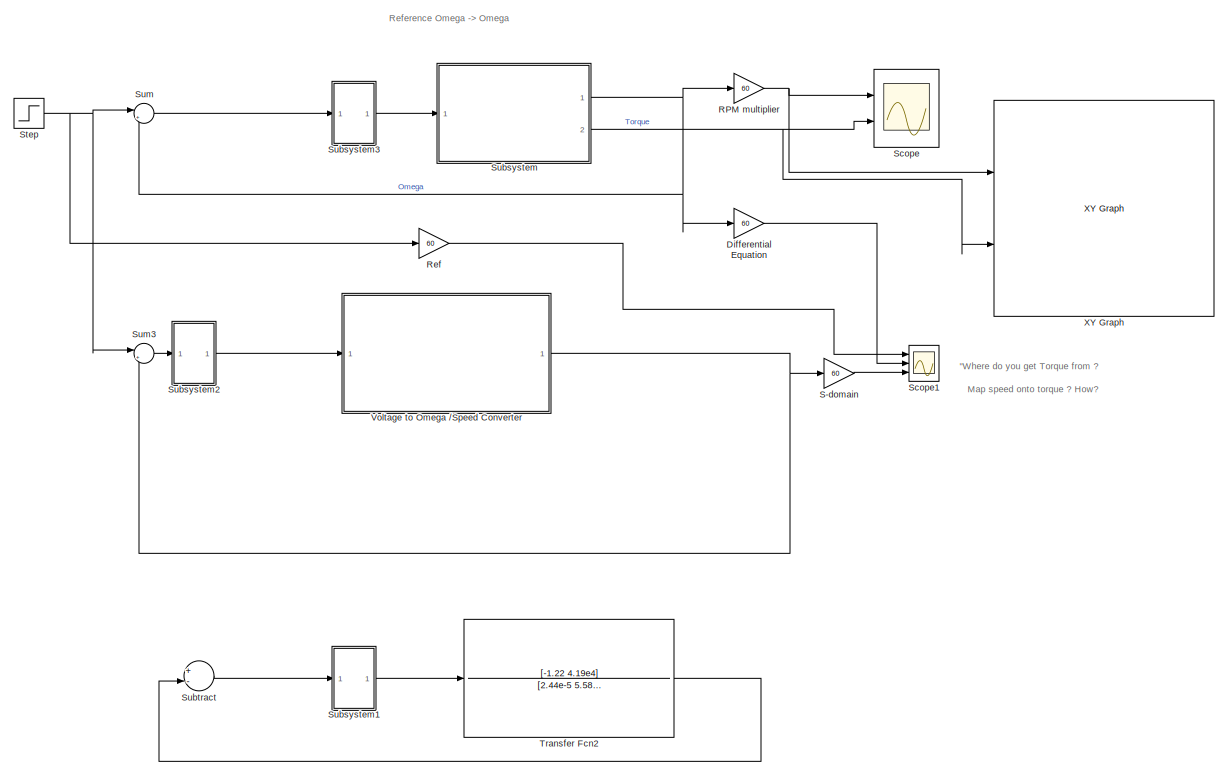
[diagram: root canvas - part 1/2, left side, full height]
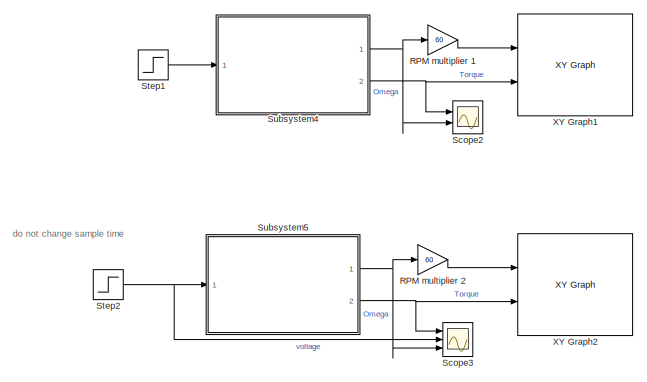
[diagram: root canvas - part 2/2, middle right region]
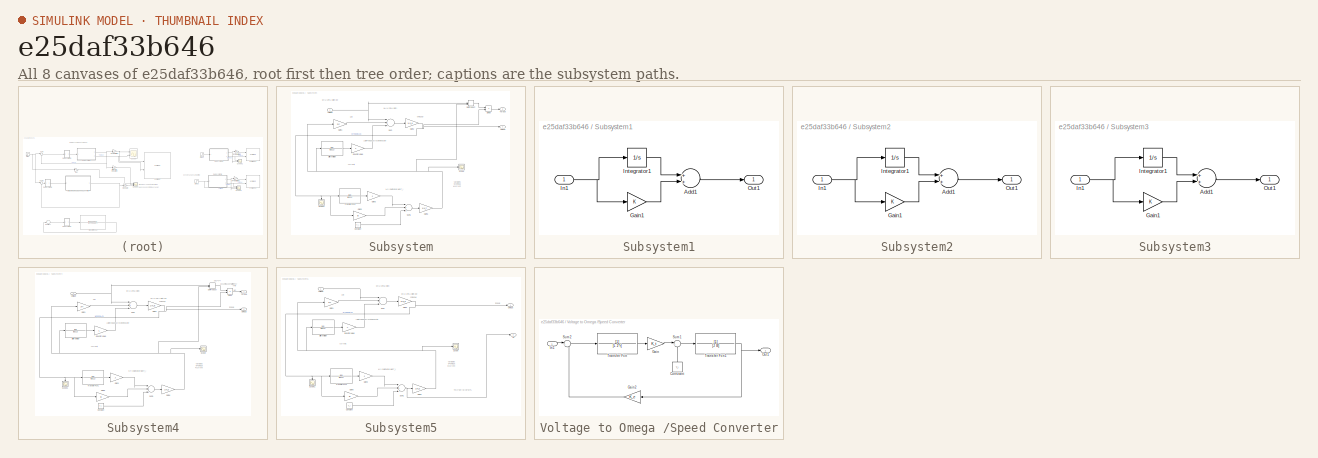
[diagram: thumbnail index - all 8 canvases of the model, root first then tree order]
MODEL slx_e25daf33b646
KIND model
CONFIG AbsTol = auto
CONFIG EnableMultiTasking = off
CONFIG FixedStep = auto
CONFIG MaxStep = auto
CONFIG MinStep = auto
CONFIG RelTol = 1e-3
CONFIG SampleTimeConstraint = Unconstrained
CONFIG Solver = ode45
CONFIG SolverName = ode45
CONFIG StartTime = 0.0
CONFIG StopTime = 0.252
BLOCK [Gain] Differential Equation 
  Gain = 60
  OutDataTypeStr = Inherit: Inherit via internal rule
  ParamDataTypeStr = Inherit: Inherit via internal rule
  SaturateOnIntegerOverflow = off
BLOCK [Gain] RPM multiplier 
  Gain = 60
  OutDataTypeStr = Inherit: Inherit via internal rule
  ParamDataTypeStr = Inherit: Inherit via internal rule
  SaturateOnIntegerOverflow = off
BLOCK [Gain] RPM multiplier 1
  Commented = on
  Gain = 60
  OutDataTypeStr = Inherit: Inherit via internal rule
  ParamDataTypeStr = Inherit: Inherit via internal rule
  SaturateOnIntegerOverflow = off
BLOCK [Gain] RPM multiplier 2
  Gain = 60
  OutDataTypeStr = Inherit: Inherit via internal rule
  ParamDataTypeStr = Inherit: Inherit via internal rule
  SaturateOnIntegerOverflow = off
BLOCK [Gain] Ref 
  Gain = 60
  OutDataTypeStr = Inherit: Inherit via internal rule
  ParamDataTypeStr = Inherit: Inherit via internal rule
  SaturateOnIntegerOverflow = off
BLOCK [Gain] S-domain 
  Gain = 60
  OutDataTypeStr = Inherit: Inherit via internal rule
  ParamDataTypeStr = Inherit: Inherit via internal rule
  SaturateOnIntegerOverflow = off
BLOCK [Scope] Scope
  Floating = off
  NumInputPorts = 2
  Ports = [2]
  ScopeSpecificationString = Simulink.scopes.TimeScopeBlockCfg('CurrentConfiguration', extmgr.ConfigurationSet(extmgr.Configuration('Core','General UI',true),extmgr.Configuration('Core','Source UI',true),extmgr.Configuration('Sources','WiredSimulink',true,'DataLoggingVariableName','ScopeData3'),extmgr.Configuration('Visuals','Time Domain',true,'SerializedDisplays',{struct('MinYLimReal','-1003.84131','MaxYLimReal','1223.81622'...<+1403ch>
BLOCK [Scope] Scope1
  Floating = off
  NumInputPorts = 3
  Ports = [3]
  ScopeSpecificationString = Simulink.scopes.TimeScopeBlockCfg('CurrentConfiguration', extmgr.ConfigurationSet(extmgr.Configuration('Core','General UI',true),extmgr.Configuration('Core','Source UI',true),extmgr.Configuration('Sources','WiredSimulink',true,'DataLoggingVariableName','ScopeData1'),extmgr.Configuration('Visuals','Time Domain',true,'SerializedDisplays',{struct('MinYLimReal','-3035.68826','MaxYLimReal','2044.11074'...<+1780ch>
BLOCK [Scope] Scope2
  Commented = on
  Floating = off
  NumInputPorts = 2
  Ports = [2]
  ScopeSpecificationString = Simulink.scopes.TimeScopeBlockCfg('CurrentConfiguration', extmgr.ConfigurationSet(extmgr.Configuration('Core','General UI',true),extmgr.Configuration('Core','Source UI',true),extmgr.Configuration('Sources','WiredSimulink',true,'DataLoggingVariableName','ScopeData4'),extmgr.Configuration('Visuals','Time Domain',true,'SerializedDisplays',{struct('MinYLimReal','-356.25688','MaxYLimReal','39.5841','YL...<+1409ch>
BLOCK [Scope] Scope3
  Floating = off
  NumInputPorts = 3
  Ports = [3]
  ScopeSpecificationString = Simulink.scopes.TimeScopeBlockCfg('CurrentConfiguration', extmgr.ConfigurationSet(extmgr.Configuration('Core','General UI',true),extmgr.Configuration('Core','Source UI',true),extmgr.Configuration('Sources','WiredSimulink',true,'DataLoggingVariableName','ScopeData5'),extmgr.Configuration('Visuals','Time Domain',true,'SerializedDisplays',{struct('MinYLimReal','-337.96903','MaxYLimReal','722.07009','...<+1801ch>
BLOCK [Step] Step
  After = 25
  SampleTime = 0
  Time = 0.01
BLOCK [Step] Step1
  After = 120
  Commented = on
  SampleTime = 0
BLOCK [Step] Step2
  After = 30
  SampleTime = 0
  Time = 0.001
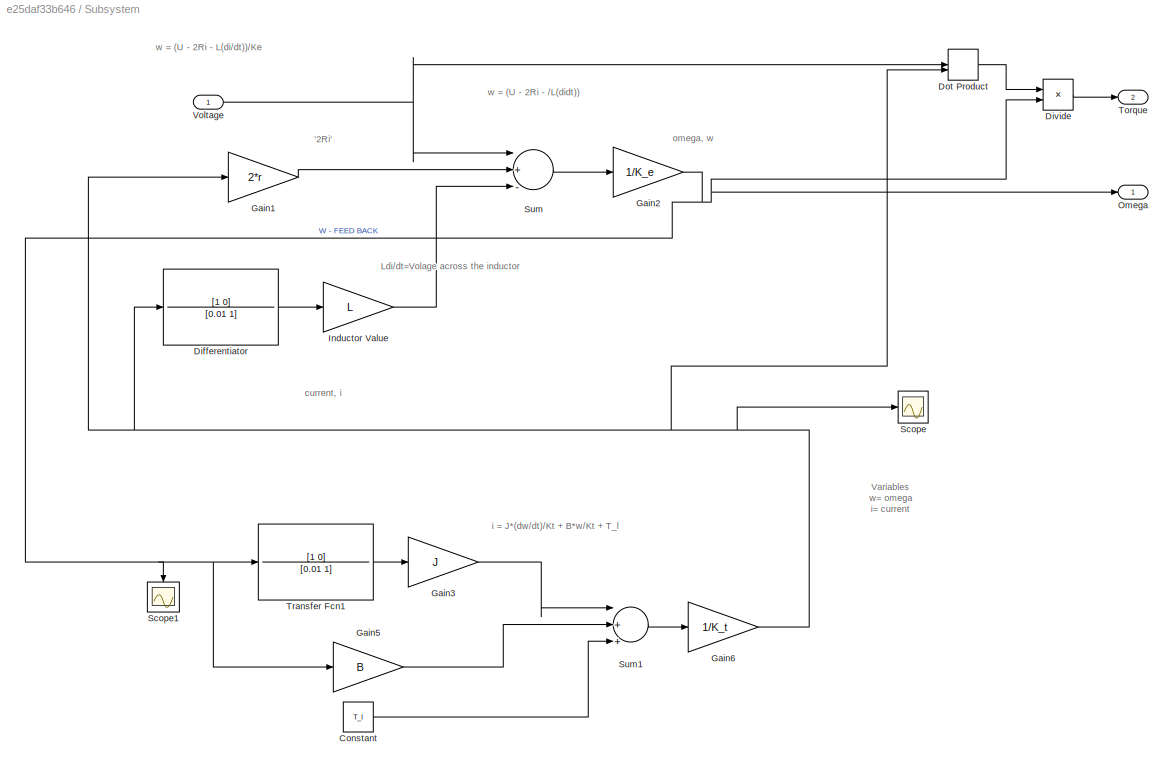
BLOCK [SubSystem] Subsystem
  Ports = [1, 2]
  RequestExecContextInheritance = off
BLOCK [Constant] Subsystem/Constant
  Value = T_l
BLOCK [TransferFcn] Subsystem/Differentiator 
  Denominator = [0.01 1]
  Numerator = [1 0]
BLOCK [Product] Subsystem/Divide
  InputSameDT = off
  Inputs = */
  OutDataTypeStr = Inherit: Inherit via internal rule
  Ports = [2, 1]
  RndMeth = Floor
  SaturateOnIntegerOverflow = off
BLOCK [DotProduct] Subsystem/Dot Product
  OutDataTypeStr = Inherit: Inherit via internal rule
BLOCK [Gain] Subsystem/Gain1
  Gain = 2*r
  OutDataTypeStr = Inherit: Inherit via internal rule
  ParamDataTypeStr = Inherit: Inherit via internal rule
  SaturateOnIntegerOverflow = off
BLOCK [Gain] Subsystem/Gain2
  Gain = 1/K_e
  OutDataTypeStr = Inherit: Inherit via internal rule
  ParamDataTypeStr = Inherit: Inherit via internal rule
  SaturateOnIntegerOverflow = off
BLOCK [Gain] Subsystem/Gain3
  Gain = J
  OutDataTypeStr = Inherit: Inherit via internal rule
  ParamDataTypeStr = Inherit: Inherit via internal rule
  SaturateOnIntegerOverflow = off
BLOCK [Gain] Subsystem/Gain5
  Gain = B
  OutDataTypeStr = Inherit: Inherit via internal rule
  ParamDataTypeStr = Inherit: Inherit via internal rule
  SaturateOnIntegerOverflow = off
BLOCK [Gain] Subsystem/Gain6
  Gain = 1/K_t
  OutDataTypeStr = Inherit: Inherit via internal rule
  ParamDataTypeStr = Inherit: Inherit via internal rule
  SaturateOnIntegerOverflow = off
BLOCK [Gain] Subsystem/Inductor Value
  Gain = L
  OutDataTypeStr = Inherit: Inherit via internal rule
  ParamDataTypeStr = Inherit: Inherit via internal rule
  SaturateOnIntegerOverflow = off
BLOCK [Outport] Subsystem/Omega
  IconDisplay = Port number
BLOCK [Scope] Subsystem/Scope
  Floating = off
  NumInputPorts = 1
  Ports = [1]
  ScopeSpecificationString = Simulink.scopes.TimeScopeBlockCfg('CurrentConfiguration', extmgr.ConfigurationSet(extmgr.Configuration('Core','General UI',true),extmgr.Configuration('Core','Source UI',true),extmgr.Configuration('Sources','WiredSimulink',true,'DataLoggingVariableName','ScopeData1'),extmgr.Configuration('Visuals','Time Domain',true,'SerializedDisplays',{struct('MinYLimReal','348.46599','MaxYLimReal','383.7847','YL...<+1374ch>  <repeated x3 — deduplicated; at blocks: Scope>
BLOCK [Scope] Subsystem/Scope1
  Floating = off
  NumInputPorts = 1
  Ports = [1]
  ScopeSpecificationString = Simulink.scopes.TimeScopeBlockCfg('CurrentConfiguration', extmgr.ConfigurationSet(extmgr.Configuration('Core','General UI',true),extmgr.Configuration('Core','Source UI',true),extmgr.Configuration('Sources','WiredSimulink',true,'DataLoggingVariableName','ScopeData2'),extmgr.Configuration('Visuals','Time Domain',true,'SerializedDisplays',{struct('MinYLimReal','-16.73069','MaxYLimReal','20.39694','YL...<+1407ch>
BLOCK [Sum] Subsystem/Sum
  InputSameDT = off
  Inputs = |+--
  OutDataTypeStr = Inherit: Inherit via internal rule
  Ports = [3, 1]
  SaturateOnIntegerOverflow = off
BLOCK [Sum] Subsystem/Sum1
  InputSameDT = off
  Inputs = |+++
  OutDataTypeStr = Inherit: Inherit via internal rule
  Ports = [3, 1]
  SaturateOnIntegerOverflow = off
BLOCK [Outport] Subsystem/Torque 
  IconDisplay = Port number
  Port = 2
BLOCK [TransferFcn] Subsystem/Transfer Fcn1
  Denominator = [0.01 1]
  Numerator = [1 0]
BLOCK [Inport] Subsystem/Voltage
  IconDisplay = Port number
BLOCK [SubSystem] Subsystem1
  Commented = on
  Ports = [1, 1]
  RequestExecContextInheritance = off
BLOCK [Sum] Subsystem1/Add1
  InputSameDT = off
  OutDataTypeStr = Inherit: Inherit via internal rule
  Ports = [2, 1]
  SaturateOnIntegerOverflow = off
BLOCK [Gain] Subsystem1/Gain1
  OutDataTypeStr = Inherit: Inherit via internal rule
  ParamDataTypeStr = Inherit: Inherit via internal rule
  SaturateOnIntegerOverflow = off
BLOCK [Inport] Subsystem1/In1
  IconDisplay = Port number
BLOCK [Integrator] Subsystem1/Integrator1
  Ports = [1, 1]
BLOCK [Outport] Subsystem1/Out1
  IconDisplay = Port number
BLOCK [SubSystem] Subsystem2
  Ports = [1, 1]
  RequestExecContextInheritance = off
BLOCK [Sum] Subsystem2/Add1
  InputSameDT = off
  OutDataTypeStr = Inherit: Inherit via internal rule
  Ports = [2, 1]
  SaturateOnIntegerOverflow = off
BLOCK [Gain] Subsystem2/Gain1
  OutDataTypeStr = Inherit: Inherit via internal rule
  ParamDataTypeStr = Inherit: Inherit via internal rule
  SaturateOnIntegerOverflow = off
BLOCK [Inport] Subsystem2/In1
  IconDisplay = Port number
BLOCK [Integrator] Subsystem2/Integrator1
  Ports = [1, 1]
BLOCK [Outport] Subsystem2/Out1
  IconDisplay = Port number
BLOCK [SubSystem] Subsystem3
  Ports = [1, 1]
  RequestExecContextInheritance = off
BLOCK [Sum] Subsystem3/Add1
  InputSameDT = off
  OutDataTypeStr = Inherit: Inherit via internal rule
  Ports = [2, 1]
  SaturateOnIntegerOverflow = off
BLOCK [Gain] Subsystem3/Gain1
  OutDataTypeStr = Inherit: Inherit via internal rule
  ParamDataTypeStr = Inherit: Inherit via internal rule
  SaturateOnIntegerOverflow = off
BLOCK [Inport] Subsystem3/In1
  IconDisplay = Port number
BLOCK [Integrator] Subsystem3/Integrator1
  Ports = [1, 1]
BLOCK [Outport] Subsystem3/Out1
  IconDisplay = Port number
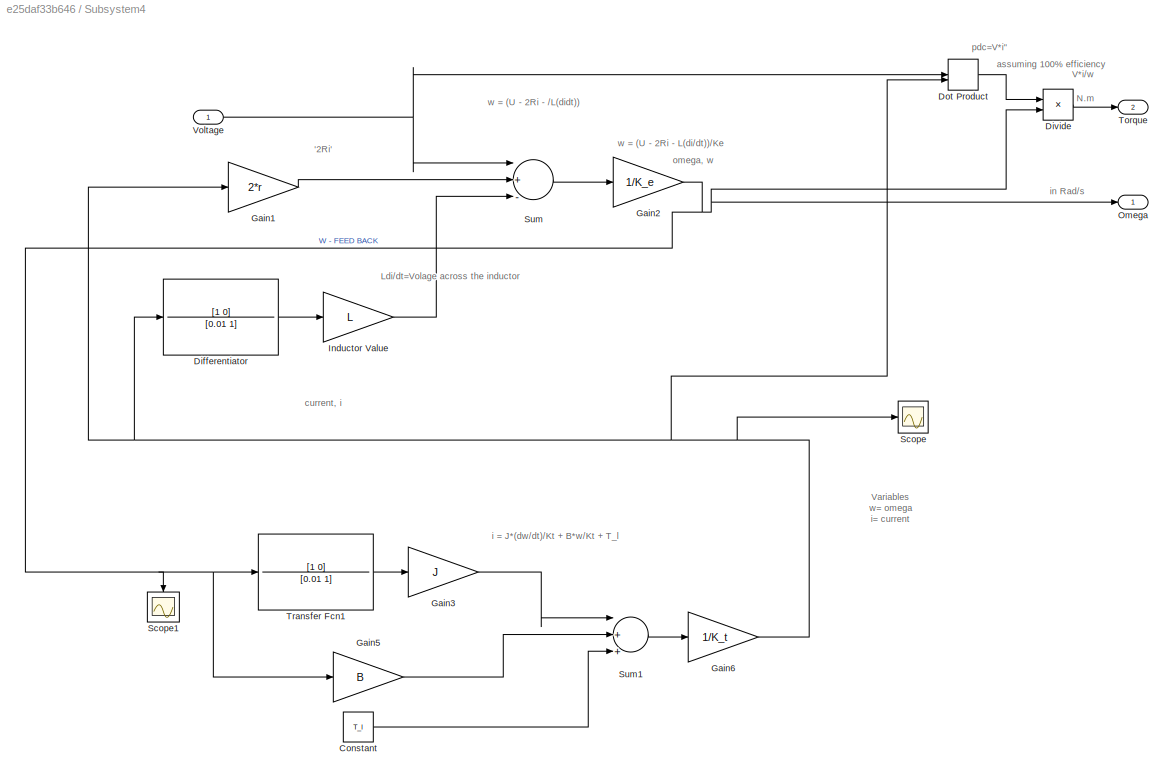
BLOCK [SubSystem] Subsystem4
  Commented = on
  Ports = [1, 2]
  RequestExecContextInheritance = off
BLOCK [Constant] Subsystem4/Constant
  Value = T_l
BLOCK [TransferFcn] Subsystem4/Differentiator 
  Denominator = [0.01 1]
  Numerator = [1 0]
BLOCK [Product] Subsystem4/Divide
  InputSameDT = off
  Inputs = */
  OutDataTypeStr = Inherit: Inherit via internal rule
  Ports = [2, 1]
  RndMeth = Floor
  SaturateOnIntegerOverflow = off
BLOCK [DotProduct] Subsystem4/Dot Product
  OutDataTypeStr = Inherit: Inherit via internal rule
BLOCK [Gain] Subsystem4/Gain1
  Gain = 2*r
  OutDataTypeStr = Inherit: Inherit via internal rule
  ParamDataTypeStr = Inherit: Inherit via internal rule
  SaturateOnIntegerOverflow = off
BLOCK [Gain] Subsystem4/Gain2
  Gain = 1/K_e
  OutDataTypeStr = Inherit: Inherit via internal rule
  ParamDataTypeStr = Inherit: Inherit via internal rule
  SaturateOnIntegerOverflow = off
BLOCK [Gain] Subsystem4/Gain3
  Gain = J
  OutDataTypeStr = Inherit: Inherit via internal rule
  ParamDataTypeStr = Inherit: Inherit via internal rule
  SaturateOnIntegerOverflow = off
BLOCK [Gain] Subsystem4/Gain5
  Gain = B
  OutDataTypeStr = Inherit: Inherit via internal rule
  ParamDataTypeStr = Inherit: Inherit via internal rule
  SaturateOnIntegerOverflow = off
BLOCK [Gain] Subsystem4/Gain6
  Gain = 1/K_t
  OutDataTypeStr = Inherit: Inherit via internal rule
  ParamDataTypeStr = Inherit: Inherit via internal rule
  SaturateOnIntegerOverflow = off
BLOCK [Gain] Subsystem4/Inductor Value
  Gain = L
  OutDataTypeStr = Inherit: Inherit via internal rule
  ParamDataTypeStr = Inherit: Inherit via internal rule
  SaturateOnIntegerOverflow = off
BLOCK [Outport] Subsystem4/Omega
  IconDisplay = Port number
BLOCK [Scope] Subsystem4/Scope
  Floating = off
  NumInputPorts = 1
  Ports = [1]
BLOCK [Scope] Subsystem4/Scope1
  Floating = off
  NumInputPorts = 1
  Ports = [1]
  ScopeSpecificationString = Simulink.scopes.TimeScopeBlockCfg('CurrentConfiguration', extmgr.ConfigurationSet(extmgr.Configuration('Core','General UI',true),extmgr.Configuration('Core','Source UI',true),extmgr.Configuration('Sources','WiredSimulink',true,'DataLoggingVariableName','ScopeData2'),extmgr.Configuration('Visuals','Time Domain',true,'SerializedDisplays',{struct('MinYLimReal','-17.26664','MaxYLimReal','25.2205','YLa...<+1403ch>
BLOCK [Sum] Subsystem4/Sum
  InputSameDT = off
  Inputs = |+--
  OutDataTypeStr = Inherit: Inherit via internal rule
  Ports = [3, 1]
  SaturateOnIntegerOverflow = off
BLOCK [Sum] Subsystem4/Sum1
  InputSameDT = off
  Inputs = |+++
  OutDataTypeStr = Inherit: Inherit via internal rule
  Ports = [3, 1]
  SaturateOnIntegerOverflow = off
BLOCK [Outport] Subsystem4/Torque 
  IconDisplay = Port number
  Port = 2
BLOCK [TransferFcn] Subsystem4/Transfer Fcn1
  Denominator = [0.01 1]
  Numerator = [1 0]
BLOCK [Inport] Subsystem4/Voltage
  IconDisplay = Port number
BLOCK [SubSystem] Subsystem5
  Ports = [1, 2]
  RequestExecContextInheritance = off
BLOCK [Constant] Subsystem5/Constant
  Value = T_l
BLOCK [TransferFcn] Subsystem5/Differentiator 
  Denominator = [0.01 1]
  Numerator = [1 0]
BLOCK [Gain] Subsystem5/Gain1
  Gain = 2*r
  OutDataTypeStr = Inherit: Inherit via internal rule
  ParamDataTypeStr = Inherit: Inherit via internal rule
  SaturateOnIntegerOverflow = off
BLOCK [Gain] Subsystem5/Gain2
  Gain = 1/K_e
  OutDataTypeStr = Inherit: Inherit via internal rule
  ParamDataTypeStr = Inherit: Inherit via internal rule
  SaturateOnIntegerOverflow = off
BLOCK [Gain] Subsystem5/Gain3
  Gain = J
  OutDataTypeStr = Inherit: Inherit via internal rule
  ParamDataTypeStr = Inherit: Inherit via internal rule
  SaturateOnIntegerOverflow = off
BLOCK [Gain] Subsystem5/Gain5
  Gain = B
  OutDataTypeStr = Inherit: Inherit via internal rule
  ParamDataTypeStr = Inherit: Inherit via internal rule
  SaturateOnIntegerOverflow = off
BLOCK [Gain] Subsystem5/Gain6
  Gain = 1/K_t
  OutDataTypeStr = Inherit: Inherit via internal rule
  ParamDataTypeStr = Inherit: Inherit via internal rule
  SaturateOnIntegerOverflow = off
BLOCK [Gain] Subsystem5/Inductor Value
  Gain = L
  OutDataTypeStr = Inherit: Inherit via internal rule
  ParamDataTypeStr = Inherit: Inherit via internal rule
  SaturateOnIntegerOverflow = off
BLOCK [Outport] Subsystem5/Omega
  IconDisplay = Port number
BLOCK [Scope] Subsystem5/Scope
  Floating = off
  NumInputPorts = 1
  Ports = [1]
BLOCK [Scope] Subsystem5/Scope1
  Floating = off
  NumInputPorts = 1
  Ports = [1]
  ScopeSpecificationString = Simulink.scopes.TimeScopeBlockCfg('CurrentConfiguration', extmgr.ConfigurationSet(extmgr.Configuration('Core','General UI',true),extmgr.Configuration('Core','Source UI',true),extmgr.Configuration('Sources','WiredSimulink',true,'DataLoggingVariableName','ScopeData2'),extmgr.Configuration('Visuals','Time Domain',true,'SerializedDisplays',{struct('MinYLimReal','-17.26664','MaxYLimReal','25.2205','YLa...<+1403ch>
BLOCK [Sum] Subsystem5/Sum
  InputSameDT = off
  Inputs = |+--
  OutDataTypeStr = Inherit: Inherit via internal rule
  Ports = [3, 1]
  SaturateOnIntegerOverflow = off
BLOCK [Sum] Subsystem5/Sum1
  InputSameDT = off
  Inputs = |+++
  OutDataTypeStr = Inherit: Inherit via internal rule
  Ports = [3, 1]
  SaturateOnIntegerOverflow = off
BLOCK [Outport] Subsystem5/Te
  IconDisplay = Port number
  Port = 2
BLOCK [TransferFcn] Subsystem5/Transfer Fcn1
  Denominator = [0.01 1]
  Numerator = [1 0]
BLOCK [Inport] Subsystem5/Voltage
  IconDisplay = Port number
BLOCK [Sum] Subtract
  Commented = on
  InputSameDT = off
  Inputs = +-
  OutDataTypeStr = Inherit: Inherit via internal rule
  Ports = [2, 1]
  SaturateOnIntegerOverflow = off
BLOCK [Sum] Sum
  IconShape = round
  InputSameDT = off
  Inputs = |+-
  OutDataTypeStr = Inherit: Inherit via internal rule
  Ports = [2, 1]
  SaturateOnIntegerOverflow = off
BLOCK [Sum] Sum3
  IconShape = round
  InputSameDT = off
  Inputs = |+-
  OutDataTypeStr = Inherit: Inherit via internal rule
  Ports = [2, 1]
  SaturateOnIntegerOverflow = off
BLOCK [TransferFcn] Transfer Fcn2
  Commented = on
  Denominator = [2.44e-5 5.58e-4 1]
  Numerator = [-1.22 4.19e4]
BLOCK [SubSystem] Voltage to Omega //Speed Converter
  Ports = [1, 1]
  RequestExecContextInheritance = off
BLOCK [Constant] Voltage to Omega //Speed Converter/Constant
  Value = T_l
BLOCK [Gain] Voltage to Omega //Speed Converter/Gain
  Gain = K_t
  OutDataTypeStr = Inherit: Inherit via internal rule
  ParamDataTypeStr = Inherit: Inherit via internal rule
  SaturateOnIntegerOverflow = off
BLOCK [Gain] Voltage to Omega //Speed Converter/Gain2
  Gain = K_e
  OutDataTypeStr = Inherit: Inherit via internal rule
  ParamDataTypeStr = Inherit: Inherit via internal rule
  SaturateOnIntegerOverflow = off
BLOCK [Inport] Voltage to Omega //Speed Converter/In1
  IconDisplay = Port number
BLOCK [Outport] Voltage to Omega //Speed Converter/Out1
  IconDisplay = Port number
BLOCK [Sum] Voltage to Omega //Speed Converter/Sum1
  IconShape = round
  InputSameDT = off
  Inputs = |+-
  OutDataTypeStr = Inherit: Inherit via internal rule
  Ports = [2, 1]
  SaturateOnIntegerOverflow = off
BLOCK [Sum] Voltage to Omega //Speed Converter/Sum2
  IconShape = round
  InputSameDT = off
  Inputs = |+-
  OutDataTypeStr = Inherit: Inherit via internal rule
  Ports = [2, 1]
  SaturateOnIntegerOverflow = off
BLOCK [TransferFcn] Voltage to Omega //Speed Converter/Transfer Fcn
  Denominator = [L 2*r]
BLOCK [TransferFcn] Voltage to Omega //Speed Converter/Transfer Fcn1
  Denominator = [J B]
BLOCK [Reference] XY Graph  REF=simulink/Sinks/XY Graph
  Ports = [2]
  SourceBlock = simulink/Sinks/XY Graph
  SourceProductBaseCode = SL
  SourceProductName = Simulink
  SourceType = XY scope.
BLOCK [Reference] XY Graph1  REF=simulink/Sinks/XY Graph
  Commented = on
  Ports = [2]
  SourceBlock = simulink/Sinks/XY Graph
  SourceProductBaseCode = SL
  SourceProductName = Simulink
  SourceType = XY scope.
BLOCK [Reference] XY Graph2  REF=simulink/Sinks/XY Graph
  Ports = [2]
  SourceBlock = simulink/Sinks/XY Graph
  SourceProductBaseCode = SL
  SourceProductName = Simulink
  SourceType = XY scope.
ANNOTATION (root): "Where do you get Torque from ?
ANNOTATION (root): Map speed onto torque ? How?
ANNOTATION (root): Reference Omega -> Omega
ANNOTATION (root): do not change sample time
ANNOTATION Subsystem: '2Ri'
ANNOTATION Subsystem: current , i
ANNOTATION Subsystem: i = J*(dw/dt)/Kt + B*w/Kt + T_l
ANNOTATION Subsystem: w = (U - 2Ri - / L(di dt))
ANNOTATION Subsystem: w = (U - 2Ri - L(di/dt))/Ke
ANNOTATION Subsystem: Ldi/dt=Volage across the inductor
ANNOTATION Subsystem: Variables w= omega i= current
ANNOTATION Subsystem: omega, w
ANNOTATION Subsystem4: '2Ri'
ANNOTATION Subsystem4: current , i
ANNOTATION Subsystem4: i = J*(dw/dt)/Kt + B*w/Kt + T_l
ANNOTATION Subsystem4: w = (U - 2Ri - / L(di dt))
ANNOTATION Subsystem4: w = (U - 2Ri - L(di/dt))/Ke
ANNOTATION Subsystem4: Ldi/dt=Volage across the inductor
ANNOTATION Subsystem4: N.m
ANNOTATION Subsystem4: V*i/w
ANNOTATION Subsystem4: Variables w= omega i= current
ANNOTATION Subsystem4: assuming 100% efficiency
ANNOTATION Subsystem4: in Rad/s
ANNOTATION Subsystem4: omega, w
ANNOTATION Subsystem4: pdc=V*i"
ANNOTATION Subsystem5: '2Ri'
ANNOTATION Subsystem5: current , i
ANNOTATION Subsystem5: i = J*(dw/dt)/Kt + B*w/Kt + T_l
ANNOTATION Subsystem5: w = (U - 2Ri - / L(di dt))
ANNOTATION Subsystem5: w = (U - 2Ri - L(di/dt))/Ke
ANNOTATION Subsystem5: Ldi/dt=Volage across the inductor
ANNOTATION Subsystem5: Te=J*der(w)+B*w+TL
ANNOTATION Subsystem5: Variables w= omega i= current
ANNOTATION Subsystem5: in Rad/s
ANNOTATION Subsystem5: omega, w
LINE Differential Equation :1 -> Scope1:2
LINE RPM multiplier 1:1 -> XY Graph1:1
LINE RPM multiplier 2:1 -> XY Graph2:1
NET RPM multiplier :1 -> Scope:1, XY Graph:1
LINE Ref :1 -> Scope1:1
LINE S-domain :1 -> Scope1:3
LINE Step1:1 -> Subsystem4:1
NET Step2:1 -> Scope3:2, Subsystem5:1
NET Step:1 -> Ref :1, Sum3:1, Sum:1
LINE Subsystem/Constant:1 -> Subsystem/Sum1:3
LINE Subsystem/Differentiator :1 -> Subsystem/Inductor Value:1
LINE Subsystem/Divide:1 -> Subsystem/Torque :1
LINE Subsystem/Dot Product:1 -> Subsystem/Divide:1
LINE Subsystem/Gain1:1 -> Subsystem/Sum:2
NET Subsystem/Gain2:1 -> Subsystem/Divide:2, Subsystem/Gain5:1, Subsystem/Omega:1, Subsystem/Scope1:1, Subsystem/Transfer Fcn1:1
LINE Subsystem/Gain3:1 -> Subsystem/Sum1:1
LINE Subsystem/Gain5:1 -> Subsystem/Sum1:2
NET Subsystem/Gain6:1 -> Subsystem/Differentiator :1, Subsystem/Dot Product:2, Subsystem/Gain1:1, Subsystem/Scope:1
LINE Subsystem/Inductor Value:1 -> Subsystem/Sum:3
LINE Subsystem/Sum1:1 -> Subsystem/Gain6:1
LINE Subsystem/Sum:1 -> Subsystem/Gain2:1
LINE Subsystem/Transfer Fcn1:1 -> Subsystem/Gain3:1
NET Subsystem/Voltage:1 -> Subsystem/Dot Product:1, Subsystem/Sum:1
LINE Subsystem1/Add1:1 -> Subsystem1/Out1:1
LINE Subsystem1/Gain1:1 -> Subsystem1/Add1:2
NET Subsystem1/In1:1 -> Subsystem1/Gain1:1, Subsystem1/Integrator1:1
LINE Subsystem1/Integrator1:1 -> Subsystem1/Add1:1
LINE Subsystem1:1 -> Transfer Fcn2:1
LINE Subsystem2/Add1:1 -> Subsystem2/Out1:1
LINE Subsystem2/Gain1:1 -> Subsystem2/Add1:2
NET Subsystem2/In1:1 -> Subsystem2/Gain1:1, Subsystem2/Integrator1:1
LINE Subsystem2/Integrator1:1 -> Subsystem2/Add1:1
LINE Subsystem2:1 -> Voltage to Omega //Speed Converter:1
LINE Subsystem3/Add1:1 -> Subsystem3/Out1:1
LINE Subsystem3/Gain1:1 -> Subsystem3/Add1:2
NET Subsystem3/In1:1 -> Subsystem3/Gain1:1, Subsystem3/Integrator1:1
LINE Subsystem3/Integrator1:1 -> Subsystem3/Add1:1
LINE Subsystem3:1 -> Subsystem:1
LINE Subsystem4/Constant:1 -> Subsystem4/Sum1:3
LINE Subsystem4/Differentiator :1 -> Subsystem4/Inductor Value:1
LINE Subsystem4/Divide:1 -> Subsystem4/Torque :1
LINE Subsystem4/Dot Product:1 -> Subsystem4/Divide:1
LINE Subsystem4/Gain1:1 -> Subsystem4/Sum:2
NET Subsystem4/Gain2:1 -> Subsystem4/Divide:2, Subsystem4/Gain5:1, Subsystem4/Omega:1, Subsystem4/Scope1:1, Subsystem4/Transfer Fcn1:1
LINE Subsystem4/Gain3:1 -> Subsystem4/Sum1:1
LINE Subsystem4/Gain5:1 -> Subsystem4/Sum1:2
NET Subsystem4/Gain6:1 -> Subsystem4/Differentiator :1, Subsystem4/Dot Product:2, Subsystem4/Gain1:1, Subsystem4/Scope:1
LINE Subsystem4/Inductor Value:1 -> Subsystem4/Sum:3
LINE Subsystem4/Sum1:1 -> Subsystem4/Gain6:1
LINE Subsystem4/Sum:1 -> Subsystem4/Gain2:1
LINE Subsystem4/Transfer Fcn1:1 -> Subsystem4/Gain3:1
NET Subsystem4/Voltage:1 -> Subsystem4/Dot Product:1, Subsystem4/Sum:1
NET Subsystem4:1 -> RPM multiplier 1:1, Scope2:2
NET Subsystem4:2 -> Scope2:1, XY Graph1:2
LINE Subsystem5/Constant:1 -> Subsystem5/Sum1:3
LINE Subsystem5/Differentiator :1 -> Subsystem5/Inductor Value:1
LINE Subsystem5/Gain1:1 -> Subsystem5/Sum:2
NET Subsystem5/Gain2:1 -> Subsystem5/Gain5:1, Subsystem5/Omega:1, Subsystem5/Scope1:1, Subsystem5/Transfer Fcn1:1
LINE Subsystem5/Gain3:1 -> Subsystem5/Sum1:1
LINE Subsystem5/Gain5:1 -> Subsystem5/Sum1:2
NET Subsystem5/Gain6:1 -> Subsystem5/Differentiator :1, Subsystem5/Gain1:1, Subsystem5/Scope:1
LINE Subsystem5/Inductor Value:1 -> Subsystem5/Sum:3
NET Subsystem5/Sum1:1 -> Subsystem5/Gain6:1, Subsystem5/Te:1
LINE Subsystem5/Sum:1 -> Subsystem5/Gain2:1
LINE Subsystem5/Transfer Fcn1:1 -> Subsystem5/Gain3:1
LINE Subsystem5/Voltage:1 -> Subsystem5/Sum:1
NET Subsystem5:1 -> RPM multiplier 2:1, Scope3:3
NET Subsystem5:2 -> Scope3:1, XY Graph2:2
NET Subsystem:1 -> Differential Equation :1, RPM multiplier :1, Sum:2
NET Subsystem:2 -> Scope:2, XY Graph:2
LINE Subtract:1 -> Subsystem1:1
LINE Sum3:1 -> Subsystem2:1
LINE Sum:1 -> Subsystem3:1
LINE Transfer Fcn2:1 -> Subtract:2
LINE Voltage to Omega //Speed Converter/Constant:1 -> Voltage to Omega //Speed Converter/Sum1:2
LINE Voltage to Omega //Speed Converter/Gain2:1 -> Voltage to Omega //Speed Converter/Sum2:2
LINE Voltage to Omega //Speed Converter/Gain:1 -> Voltage to Omega //Speed Converter/Sum1:1
LINE Voltage to Omega //Speed Converter/In1:1 -> Voltage to Omega //Speed Converter/Sum2:1
LINE Voltage to Omega //Speed Converter/Sum1:1 -> Voltage to Omega //Speed Converter/Transfer Fcn1:1
LINE Voltage to Omega //Speed Converter/Sum2:1 -> Voltage to Omega //Speed Converter/Transfer Fcn:1
NET Voltage to Omega //Speed Converter/Transfer Fcn1:1 -> Voltage to Omega //Speed Converter/Gain2:1, Voltage to Omega //Speed Converter/Out1:1
LINE Voltage to Omega //Speed Converter/Transfer Fcn:1 -> Voltage to Omega //Speed Converter/Gain:1
NET Voltage to Omega //Speed Converter:1 -> S-domain :1, Sum3:2
note: NET lines group one-source signal fan-out (src -> all destinations, sorted); 1:1 wires keep LINE
